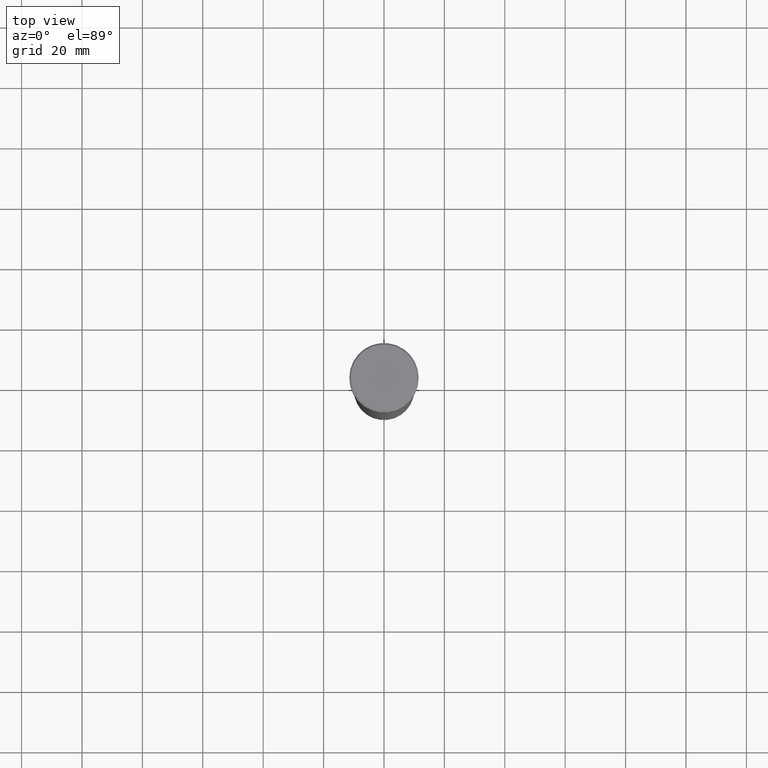
[diagram: clean part render]
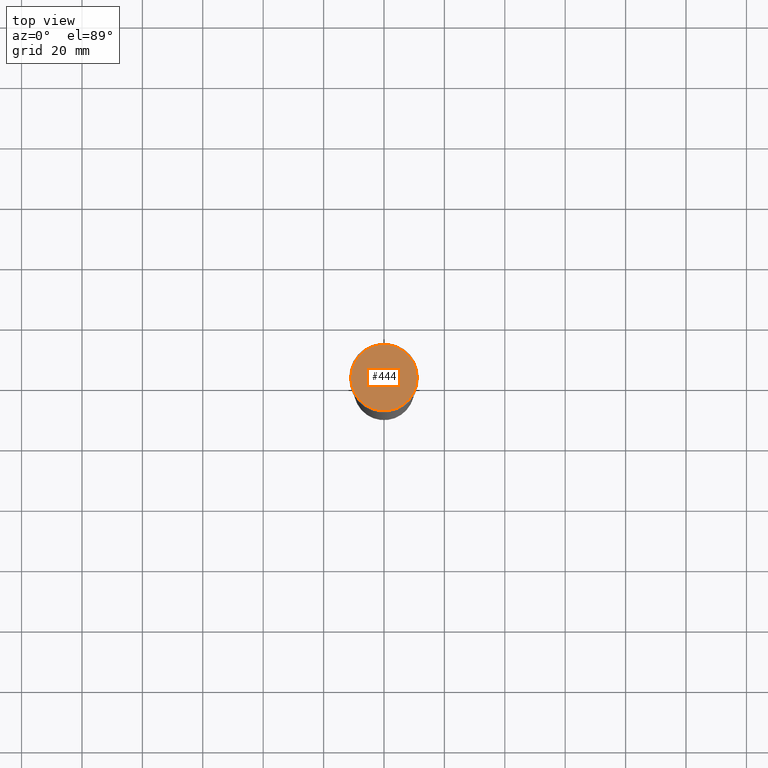
[diagram: same view with one face highlighted and labeled with its STEP entity id]
A machine part, top view. The second image highlights one B-rep face of the part: STEP entity #444.
In plain terms, the highlighted planar face has unit normal (0, -0, 1).
Its self-contained STEP definition (entity closure, byte-faithful):
#6 = DIRECTION ( 'NONE',  ( 1.000000000000000000, 0.000000000000000000, 0.000000000000000000 ) ) ;
#10 = CARTESIAN_POINT ( 'NONE',  ( 0.000000000000000000, 0.000000000000000000, 0.000000000000000000 ) ) ;
#15 = CARTESIAN_POINT ( 'NONE',  ( 0.000000000000000000, 0.000000000000000000, 0.000000000000000000 ) ) ;
#63 = EDGE_LOOP ( 'NONE', ( #521, #325 ) ) ;
#143 = AXIS2_PLACEMENT_3D ( 'NONE', #10, #294, #430 ) ;
#242 = AXIS2_PLACEMENT_3D ( 'NONE', #15, #473, #6 ) ;
#250 = VERTEX_POINT ( 'NONE', #513 ) ;
#265 = DIRECTION ( 'NONE',  ( 0.000000000000000000, -0.000000000000000000, 1.000000000000000000 ) ) ;
#294 = DIRECTION ( 'NONE',  ( -0.000000000000000000, -0.000000000000000000, 1.000000000000000000 ) ) ;
#307 = EDGE_CURVE ( 'NONE', #250, #573, #424, .T. ) ;
#325 = ORIENTED_EDGE ( 'NONE', *, *, #307, .T. ) ;
#336 = EDGE_CURVE ( 'NONE', #573, #250, #413, .T. ) ;
#348 = CARTESIAN_POINT ( 'NONE',  ( 0.000000000000000000, 0.000000000000000000, 0.000000000000000000 ) ) ;
#357 = PLANE ( 'NONE',  #405 ) ;
#405 = AXIS2_PLACEMENT_3D ( 'NONE', #348, #265, #579 ) ;
#406 = FACE_OUTER_BOUND ( 'NONE', #63, .T. ) ;
#412 = CARTESIAN_POINT ( 'NONE',  ( -11.00000000000000000, 0.000000000000000000, 0.000000000000000000 ) ) ;
#413 = CIRCLE ( 'NONE', #242, 11.00000000000000000 ) ;
#424 = CIRCLE ( 'NONE', #143, 11.00000000000000000 ) ;
#430 = DIRECTION ( 'NONE',  ( 1.000000000000000000, 0.000000000000000000, 0.000000000000000000 ) ) ;
#444 = ADVANCED_FACE ( 'NONE', ( #406 ), #357, .T. ) ;
#473 = DIRECTION ( 'NONE',  ( -0.000000000000000000, -0.000000000000000000, 1.000000000000000000 ) ) ;
#513 = CARTESIAN_POINT ( 'NONE',  ( 11.00000000000000000, 1.377727649040772389E-15, 0.000000000000000000 ) ) ;
#521 = ORIENTED_EDGE ( 'NONE', *, *, #336, .T. ) ;
#573 = VERTEX_POINT ( 'NONE', #412 ) ;
#579 = DIRECTION ( 'NONE',  ( 1.000000000000000000, 0.000000000000000000, 0.000000000000000000 ) ) ;